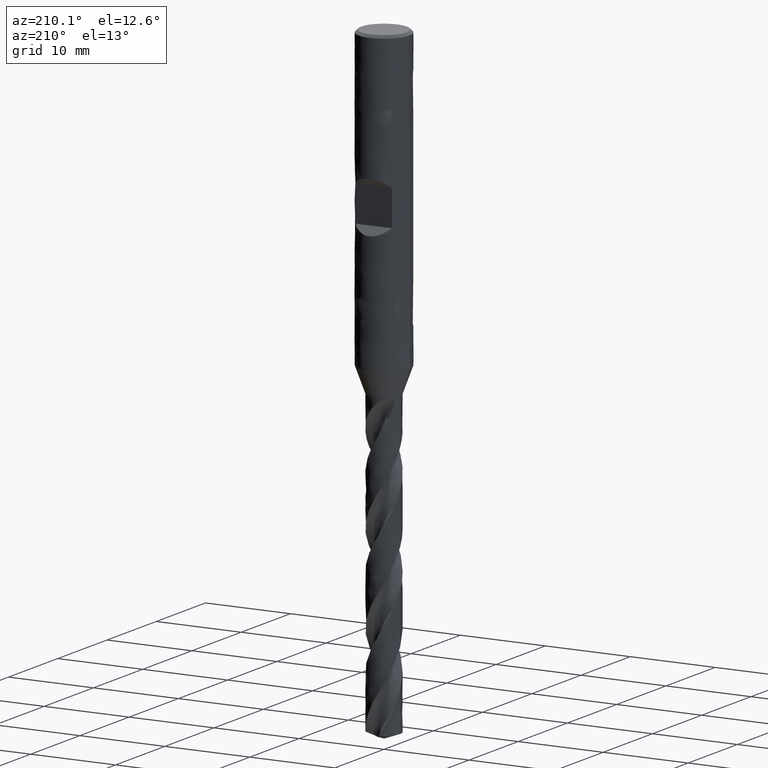
[diagram: clean part render]
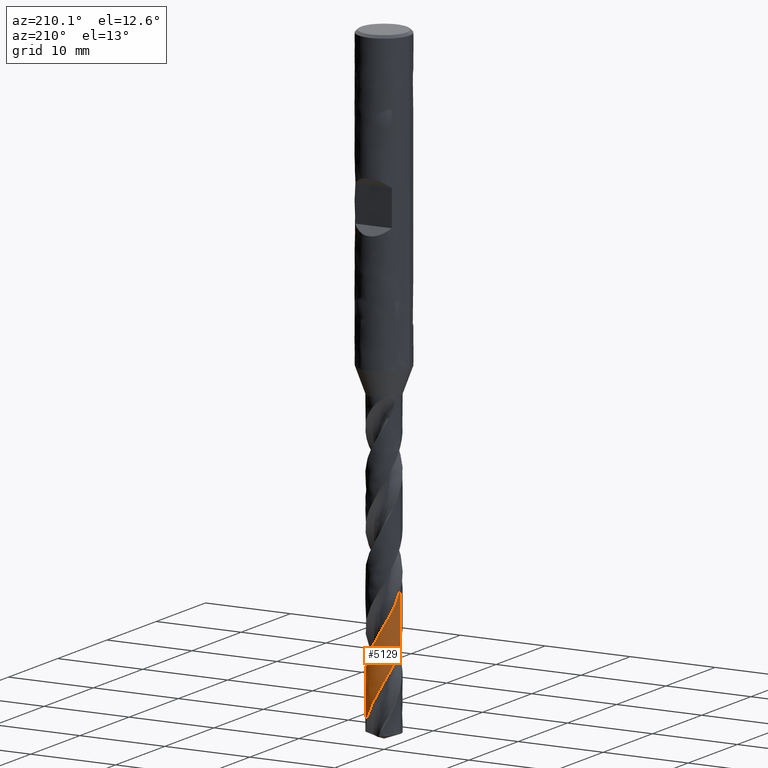
[diagram: same view with one face highlighted and labeled with its STEP entity id]
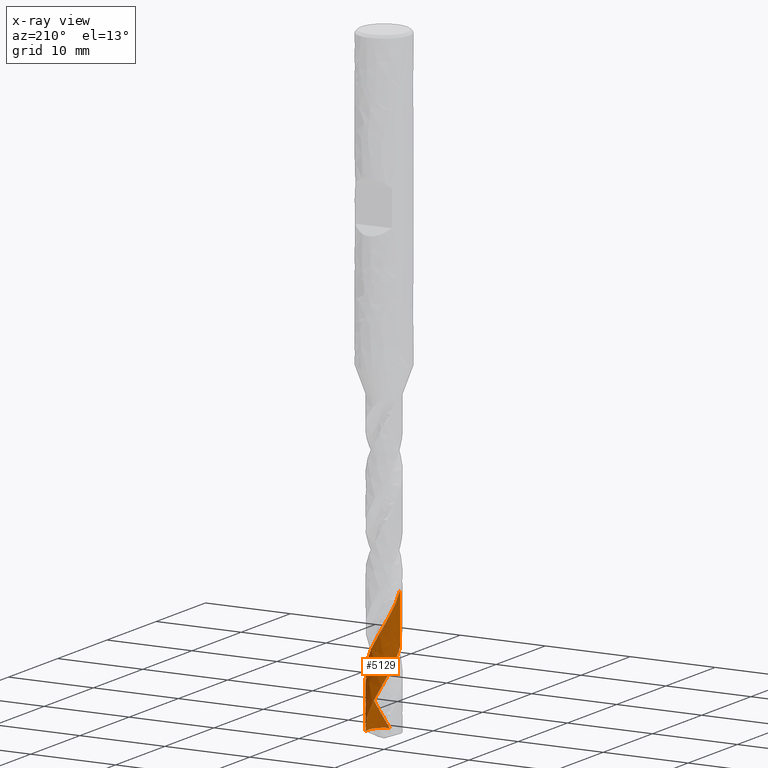
[diagram: x-ray of the same camera — body ghosted, the highlighted face saturated]
A machine part, auxiliary view. The second image highlights one B-rep face of the part: STEP entity #5129.
The next image is the same camera in x-ray: the body ghosted, the highlighted face saturated — about 0% of this face is hidden behind the body in this view.
In plain terms, the highlighted face is a freeform B-spline surface patch.
Its self-contained STEP definition (entity closure, byte-faithful):
#3325 = VERTEX_POINT('', #3326);
#3326 = CARTESIAN_POINT('', (-1.9, 4.04998519873993E-15, -64.2412776575203));
#3513 = EDGE_CURVE('', #3514, #3325, #3516, .T.);
#3514 = VERTEX_POINT('', #3515);
#3515 = CARTESIAN_POINT('', (1.73084838171589, 0.783686084801496, -73.3084565548942));
#3516 = B_SPLINE_CURVE_WITH_KNOTS('', 3, (#3517, #3518, #3519, #3520, #3521, #3522, #3523, #3524, #3525, #3526, #3527, #3528, #3529, #3530, #3531, #3532, #3533, #3534, #3535, #3536, #3537, #3538, #3539, #3540, #3541, #3542, #3543, #3544, #3545, #3546, #3547, #3548, #3549, #3550, #3551, #3552, #3553, #3554, #3555, #3556, #3557, #3558, #3559, #3560, #3561, #3562, #3563, #3564, #3565, #3566, #3567, #3568, #3569, #3570, #3571, #3572, #3573, #3574, #3575, #3576, #3577, #3578, #3579, #3580, #3581, #3582, #3583, #3584, #3585, #3586, #3587, #3588, #3589, #3590, #3591, #3592, #3593, #3594, #3595), .UNSPECIFIED., .F., .U., (4, 3, 3, 3, 3, 3, 3, 3, 3, 3, 3, 3, 3, 3, 3, 3, 3, 3, 3, 3, 3, 3, 3, 3, 3, 3, 4), (0., 0.443819757617372, 0.88745372120638, 1.33090561153691, 1.77417789256857, 2.21727183258299, 2.66018751453658, 3.10292384433296, 3.54547852050461, 3.98784797018588, 4.28291016538362, 4.37043992165208, 4.42881222714875, 4.87336559562788, 5.31770501137488, 5.76184031133185, 6.20577938786488, 6.64952844220095, 7.09309217258721, 7.5364739102227, 7.97967571194177, 8.42269841561081, 8.86554166123114, 9.30820381940032, 9.75068200303021, 10.1929720216985, 10.4318624018221), .UNSPECIFIED.);
#3517 = CARTESIAN_POINT('', (1.73084838171589, 0.783686084801486, -73.3084565548942));
#3518 = CARTESIAN_POINT('', (1.70070003341415, 0.85027169973263, -73.1798344235422));
#3519 = CARTESIAN_POINT('', (1.66668916370934, 0.915145304474307, -73.0511623395597));
#3520 = CARTESIAN_POINT('', (1.62906844058166, 0.977822077834633, -72.9225445998536));
#3521 = CARTESIAN_POINT('', (1.59146346642771, 1.04047261313321, -72.7939807027437));
#3522 = CARTESIAN_POINT('', (1.55022102264428, 1.10097917989783, -72.6653670155968));
#3523 = CARTESIAN_POINT('', (1.50564777995486, 1.15888945232797, -72.5368075909029));
#3524 = CARTESIAN_POINT('', (1.461092830715, 1.21677595761477, -72.4083009287008));
#3525 = CARTESIAN_POINT('', (1.41317361545346, 1.27211535473051, -72.27974442353));
#3526 = CARTESIAN_POINT('', (1.36224628553535, 1.32449426482154, -72.1512422442819));
#3527 = CARTESIAN_POINT('', (1.31133958248165, 1.37685196012126, -72.0227921116861));
#3528 = CARTESIAN_POINT('', (1.25738614180971, 1.42629382025662, -71.8942920515753));
#3529 = CARTESIAN_POINT('', (1.2007866494811, 1.47245082173497, -71.7658463980114));
#3530 = CARTESIAN_POINT('', (1.14420992873435, 1.51858925294184, -71.6374524217788));
#3531 = CARTESIAN_POINT('', (1.08494399395755, 1.56148242273656, -71.5090084424359));
#3532 = CARTESIAN_POINT('', (1.02342863498809, 1.60081036637274, -71.3806189305678));
#3533 = CARTESIAN_POINT('', (0.961938023837575, 1.6401224882557, -71.2522810701971));
#3534 = CARTESIAN_POINT('', (0.898150867164237, 1.67590354671434, -71.1238931628227));
#3535 = CARTESIAN_POINT('', (0.832540203564457, 1.70788665005875, -70.9955597435056));
#3536 = CARTESIAN_POINT('', (0.766956108032894, 1.7398568023183, -70.8672782909094));
#3537 = CARTESIAN_POINT('', (0.699497954730948, 1.76805743884723, -70.738946804601));
#3538 = CARTESIAN_POINT('', (0.630665853888616, 1.79227804225211, -70.6106697623575));
#3539 = CARTESIAN_POINT('', (0.561861994687581, 1.81648870800313, -70.4824453518683));
#3540 = CARTESIAN_POINT('', (0.491630675749331, 1.83674182398059, -70.3541709958905));
#3541 = CARTESIAN_POINT('', (0.420492640790754, 1.85288584080112, -70.2259509603052));
#3542 = CARTESIAN_POINT('', (0.349384379890068, 1.86902310071738, -70.0977845898339));
#3543 = CARTESIAN_POINT('', (0.277313356633181, 1.88106757191773, -69.9695684477192));
#3544 = CARTESIAN_POINT('', (0.204814303071141, 1.88892855906696, -69.8414064152785));
#3545 = CARTESIAN_POINT('', (0.156457143893022, 1.89417186898889, -69.7559218261862));
#3546 = CARTESIAN_POINT('', (0.107888156799473, 1.89755800988243, -69.6704227614652));
#3547 = CARTESIAN_POINT('', (0.0592676590862896, 1.8990753920228, -69.5849402084585));
#3548 = CARTESIAN_POINT('', (0.0448444615918283, 1.89952552115176, -69.5595819377221));
#3549 = CARTESIAN_POINT('', (0.0304157549806455, 1.8998113382898, -69.5342233509184));
#3550 = CARTESIAN_POINT('', (0.0159857686795061, 1.89993275017821, -69.5088652379871));
#3551 = CARTESIAN_POINT('', (0.00636262331052596, 1.90001371797869, -69.4919542858955));
#3552 = CARTESIAN_POINT('', (-0.0032612577529606, 1.90002157300981, -69.4750432443375));
#3553 = CARTESIAN_POINT('', (-0.0128846379152893, 1.89995631163082, -69.4581323579495));
#3554 = CARTESIAN_POINT('', (-0.0861746344456276, 1.89945929227184, -69.3293419762136));
#3555 = CARTESIAN_POINT('', (-0.159469874461256, 1.89471427260633, -69.2005012826463));
#3556 = CARTESIAN_POINT('', (-0.232219834932977, 1.885755537779, -69.0717153464227));
#3557 = CARTESIAN_POINT('', (-0.304934782616787, 1.87680111457303, -68.9429913917402));
#3558 = CARTESIAN_POINT('', (-0.377164679202487, 1.86362968447069, -68.8142171627675));
#3559 = CARTESIAN_POINT('', (-0.448367341842851, 1.84633873565197, -68.6854976780631));
#3560 = CARTESIAN_POINT('', (-0.519537296181359, 1.82905572976055, -68.5568373231103));
#3561 = CARTESIAN_POINT('', (-0.589739150619504, 1.80764287165939, -68.4281266599308));
#3562 = CARTESIAN_POINT('', (-0.658446446102016, 1.78225931828555, -68.2994707840628));
#3563 = CARTESIAN_POINT('', (-0.727123386013218, 1.75688697961982, -68.1708717496494));
#3564 = CARTESIAN_POINT('', (-0.794362873305756, 1.72752686062634, -68.042222342467));
#3565 = CARTESIAN_POINT('', (-0.859661184478092, 1.69439742914753, -67.9136277833872));
#3566 = CARTESIAN_POINT('', (-0.924931545579792, 1.66128217827971, -67.7850882674922));
#3567 = CARTESIAN_POINT('', (-0.988315048638229, 1.62437414143174, -67.6564983177346));
#3568 = CARTESIAN_POINT('', (-1.04933728706745, 1.58394799724295, -67.5279632629518));
#3569 = CARTESIAN_POINT('', (-1.11033404063728, 1.54353873631879, -67.399481888563));
#3570 = CARTESIAN_POINT('', (-1.16902044200627, 1.49958189474562, -67.2709500502194));
#3571 = CARTESIAN_POINT('', (-1.22495750687567, 1.4524045945772, -67.1424731145384));
#3572 = CARTESIAN_POINT('', (-1.28087162094993, 1.40524665110105, -67.0140488925248));
#3573 = CARTESIAN_POINT('', (-1.33408339481459, 1.35483315881667, -66.8855742287959));
#3574 = CARTESIAN_POINT('', (-1.38419485934803, 1.30153931610017, -66.7571544170991));
#3575 = CARTESIAN_POINT('', (-1.4342859873373, 1.24826710142021, -66.6287867215239));
#3576 = CARTESIAN_POINT('', (-1.48131944439281, 1.19207419131738, -66.5003686741646));
#3577 = CARTESIAN_POINT('', (-1.52494332585848, 1.13337895380129, -66.3720053566388));
#3578 = CARTESIAN_POINT('', (-1.56854957889376, 1.07470743505742, -66.243693910788));
#3579 = CARTESIAN_POINT('', (-1.60878412599925, 1.01348833429434, -66.1153322778567));
#3580 = CARTESIAN_POINT('', (-1.64534561030775, 0.950177784754532, -65.9870251785445));
#3581 = CARTESIAN_POINT('', (-1.68189228442125, 0.88689288082518, -65.858770053412));
#3582 = CARTESIAN_POINT('', (-1.71479854936418, 0.821466794465895, -65.7304649318818));
#3583 = CARTESIAN_POINT('', (-1.74381758265316, 0.754387326530423, -65.6022141764638));
#3584 = CARTESIAN_POINT('', (-1.77282474947963, 0.687335288729639, -65.474015865342));
#3585 = CARTESIAN_POINT('', (-1.79797154855918, 0.61857645519595, -65.3457676672414));
#3586 = CARTESIAN_POINT('', (-1.81906906142597, 0.548623504566676, -65.2175737589458));
#3587 = CARTESIAN_POINT('', (-1.8401578059688, 0.478699627038922, -65.0894331292393));
#3588 = CARTESIAN_POINT('', (-1.85721785547225, 0.407525525884911, -64.9612426331181));
#3589 = CARTESIAN_POINT('', (-1.8701206954161, 0.335631620347473, -64.8331064249471));
#3590 = CARTESIAN_POINT('', (-1.88301804839478, 0.263768287874378, -64.7050247070212));
#3591 = CARTESIAN_POINT('', (-1.89177222871474, 0.191127311466483, -64.5768930921876));
#3592 = CARTESIAN_POINT('', (-1.89631670204795, 0.118249589995069, -64.4488158022018));
#3593 = CARTESIAN_POINT('', (-1.89877127012818, 0.0788867605166333, -64.3796384950086));
#3594 = CARTESIAN_POINT('', (-1.9, 0.0394415203860729, -64.3104536905748));
#3595 = CARTESIAN_POINT('', (-1.9, 4.03844428549809E-15, -64.2412776575203));
#3822 = VERTEX_POINT('', #3823);
#3823 = CARTESIAN_POINT('', (-1.9, 3.68704157555169E-15, -58.3139584755173));
#3944 = EDGE_CURVE('', #3822, #3325, #3945, .T.);
#3945 = LINE('', #3946, #3947);
#3946 = CARTESIAN_POINT('', (-1.9, 3.68704157555169E-15, -58.3139584755173));
#3947 = VECTOR('', #3948, 5.92731918200309);
#3948 = DIRECTION('', (0., 3.62943623188239E-16, -5.92731918200309));
#3976 = VERTEX_POINT('', #3977);
#3977 = CARTESIAN_POINT('', (0.422849418221703, -1.85234941884882, -73.3084565548942));
#4077 = EDGE_CURVE('', #4078, #3976, #4080, .T.);
#4078 = VERTEX_POINT('', #4079);
#4079 = CARTESIAN_POINT('', (0.706166154767308, -1.76389607456367, -72.7835814676865));
#4080 = B_SPLINE_CURVE_WITH_KNOTS('', 3, (#4081, #4082, #4083, #4084, #4085, #4086, #4087), .UNSPECIFIED., .F., .U., (4, 3, 4), (0., 0.442631279409449, 0.603068373944691), .UNSPECIFIED.);
#4081 = CARTESIAN_POINT('', (0.706166154767306, -1.76389607456367, -72.7835814676865));
#4082 = CARTESIAN_POINT('', (0.638687710506975, -1.79091070099215, -72.9119794060499));
#4083 = CARTESIAN_POINT('', (0.569632998411579, -1.81405637742271, -73.0404305375617));
#4084 = CARTESIAN_POINT('', (0.499510250112355, -1.83316379792769, -73.1688317358017));
#4085 = CARTESIAN_POINT('', (0.47409340651973, -1.84008951504821, -73.2153723128887));
#4086 = CARTESIAN_POINT('', (0.448531594954052, -1.84648675957976, -73.2619155854585));
#4087 = CARTESIAN_POINT('', (0.422849418221703, -1.85234941884882, -73.3084565548942));
#4656 = EDGE_CURVE('', #3514, #3976, #4657, .T.);
#4657 = CIRCLE('', #4658, 1.89999999999997);
#4658 = AXIS2_PLACEMENT_3D('', #4659, #4660, #4661);
#4659 = CARTESIAN_POINT('', (2.74862687175111E-31, 4.4888483335192E-15, -73.3084565548942));
#4660 = DIRECTION('', (3.74939945665464E-33, 6.12323399573677E-17, -1.));
#4661 = DIRECTION('', (-1., 6.12323399573677E-17, 0.));
#5129 = ADVANCED_FACE('', (#5130), #5266, .T.);
#5130 = FACE_OUTER_BOUND('', #5131, .T.);
#5131 = EDGE_LOOP('', (#5132, #5133, #5134, #5135, #5136));
#5132 = ORIENTED_EDGE('', *, *, #4077, .T.);
#5133 = ORIENTED_EDGE('', *, *, #4656, .F.);
#5134 = ORIENTED_EDGE('', *, *, #3513, .T.);
#5135 = ORIENTED_EDGE('', *, *, #3944, .F.);
#5136 = ORIENTED_EDGE('', *, *, #5137, .F.);
#5137 = EDGE_CURVE('', #4078, #3822, #5138, .T.);
#5138 = B_SPLINE_CURVE_WITH_KNOTS('', 3, (#5139, #5140, #5141, #5142, #5143, #5144, #5145, #5146, #5147, #5148, #5149, #5150, #5151, #5152, #5153, #5154, #5155, #5156, #5157, #5158, #5159, #5160, #5161, #5162, #5163, #5164, #5165, #5166, #5167, #5168, #5169, #5170, #5171, #5172, #5173, #5174, #5175, #5176, #5177, #5178, #5179, #5180, #5181, #5182, #5183, #5184, #5185, #5186, #5187, #5188, #5189, #5190, #5191, #5192, #5193, #5194, #5195, #5196, #5197, #5198, #5199, #5200, #5201, #5202, #5203, #5204, #5205, #5206, #5207, #5208, #5209, #5210, #5211, #5212, #5213, #5214, #5215, #5216, #5217, #5218, #5219, #5220, #5221, #5222, #5223, #5224, #5225, #5226, #5227, #5228, #5229, #5230, #5231, #5232, #5233, #5234, #5235, #5236, #5237, #5238, #5239, #5240, #5241, #5242, #5243, #5244, #5245, #5246, #5247, #5248, #5249, #5250, #5251, #5252, #5253, #5254, #5255, #5256, #5257, #5258, #5259, #5260, #5261, #5262, #5263, #5264, #5265), .UNSPECIFIED., .F., .U., (4, 3, 3, 3, 3, 3, 3, 3, 3, 3, 3, 3, 3, 3, 3, 3, 3, 3, 3, 3, 3, 3, 3, 3, 3, 3, 3, 3, 3, 3, 3, 3, 3, 3, 3, 3, 3, 3, 3, 3, 3, 3, 4), (0., 0.44388883261312, 0.88759215259219, 1.33111414596845, 1.77445768546623, 2.21762442363559, 2.66061474736746, 3.10342785999716, 3.54606180040333, 3.98851339273206, 4.43077816096444, 4.56203735797933, 4.60095491193245, 5.04550647775911, 5.48984578433054, 5.9339824862187, 6.3779243191278, 6.82167734925043, 7.26524615833888, 7.70863397730673, 8.15184277717759, 8.59487332320761, 9.03772519605882, 9.48039676335356, 9.92288509182405, 10.3651859482152, 10.5619980022049, 10.6203616343877, 10.6787672092637, 11.1233074884874, 11.5676342466853, 12.011757100844, 12.4556837405333, 12.8994201750872, 13.3429709166299, 13.786339111612, 14.2295266295422, 14.6725341147222, 15.1153609983761, 15.5580054420263, 16.0004643491153, 16.4427332943112, 16.6442499527873), .UNSPECIFIED.);
#5139 = CARTESIAN_POINT('', (0.706166154767308, -1.76389607456367, -72.7835814676865));
#5140 = CARTESIAN_POINT('', (0.773836311041015, -1.73680469727824, -72.6548187398329));
#5141 = CARTESIAN_POINT('', (0.839978021291823, -1.70579957334485, -72.5260079724413));
#5142 = CARTESIAN_POINT('', (0.904100923213498, -1.67110787223462, -72.3972532747374));
#5143 = CARTESIAN_POINT('', (0.968197026514518, -1.63643066968435, -72.2685523869546));
#5144 = CARTESIAN_POINT('', (1.03032604116709, -1.59804290392088, -72.1398034249543));
#5145 = CARTESIAN_POINT('', (1.09002735771825, -1.55622632011728, -72.0111105212175));
#5146 = CARTESIAN_POINT('', (1.14970427635208, -1.51442682534308, -71.882470209936));
#5147 = CARTESIAN_POINT('', (1.20700209867691, -1.46916864326915, -71.7537818998883));
#5148 = CARTESIAN_POINT('', (1.26149565273594, -1.42078454317617, -71.6251495031454));
#5149 = CARTESIAN_POINT('', (1.31596728096892, -1.37241991073181, -71.4965688624607));
#5150 = CARTESIAN_POINT('', (1.36767984911133, -1.32089369098611, -71.3679404473694));
#5151 = CARTESIAN_POINT('', (1.41624885362555, -1.26658564045401, -71.2393676486886));
#5152 = CARTESIAN_POINT('', (1.46479848926722, -1.21229924747328, -71.1108461236581));
#5153 = CARTESIAN_POINT('', (1.51024597313387, -1.15518968289424, -70.9822771153523));
#5154 = CARTESIAN_POINT('', (1.55225256785713, -1.09567876933932, -70.853763461807));
#5155 = CARTESIAN_POINT('', (1.59424244072574, -1.03619154570388, -70.7253009665773));
#5156 = CARTESIAN_POINT('', (1.63282819345344, -0.974256642468421, -70.5967911440418));
#5157 = CARTESIAN_POINT('', (1.66772168911543, -0.910332009573419, -70.4683365717225));
#5158 = CARTESIAN_POINT('', (1.70260122619978, -0.84643294869217, -70.3399333855738));
#5159 = CARTESIAN_POINT('', (1.73381978340755, -0.780493864654562, -70.2114828692338));
#5160 = CARTESIAN_POINT('', (1.76114385990772, -0.713002317464289, -70.0830876348864));
#5161 = CARTESIAN_POINT('', (1.78845688046712, -0.645538078883978, -69.9547443521613));
#5162 = CARTESIAN_POINT('', (1.81190063939024, -0.576468161182986, -69.8263536377546));
#5163 = CARTESIAN_POINT('', (1.83129935534214, -0.506302944020568, -69.6980183155712));
#5164 = CARTESIAN_POINT('', (1.85069007977275, -0.436166632216019, -69.569735862581));
#5165 = CARTESIAN_POINT('', (1.86605462353558, -0.364879821917652, -69.44140583159));
#5166 = CARTESIAN_POINT('', (1.87727709634176, -0.29296877572871, -69.3131313301768));
#5167 = CARTESIAN_POINT('', (1.88849483048641, -0.221088093802108, -69.1849109923562));
#5168 = CARTESIAN_POINT('', (1.89558289030714, -0.148526794811242, -69.056642932538));
#5169 = CARTESIAN_POINT('', (1.89848658690313, -0.0758200458249127, -68.9284305219752));
#5170 = CARTESIAN_POINT('', (1.89934837131587, -0.0542415024386707, -68.8903785240169));
#5171 = CARTESIAN_POINT('', (1.89984225961209, -0.0326468430793321, -68.8523255518093));
#5172 = CARTESIAN_POINT('', (1.89996786592455, -0.0110502694137879, -68.8142742314035));
#5173 = CARTESIAN_POINT('', (1.90000510743259, -0.0046470166136343, -68.8029922462279));
#5174 = CARTESIAN_POINT('', (1.90000997864289, 0.00175648953902245, -68.7917102515508));
#5175 = CARTESIAN_POINT('', (1.8999824778974, 0.0081598825277905, -68.7804283179933));
#5176 = CARTESIAN_POINT('', (1.89966833946297, 0.0813052395866858, -68.6515558499402));
#5177 = CARTESIAN_POINT('', (1.89512310946969, 0.154469338048805, -68.522635215938));
#5178 = CARTESIAN_POINT('', (1.88637838793384, 0.227104772157291, -68.3937706415917));
#5179 = CARTESIAN_POINT('', (1.87763784172482, 0.299705525152645, -68.2649675959873));
#5180 = CARTESIAN_POINT('', (1.86469463785258, 0.371837625298226, -68.1361165072607));
#5181 = CARTESIAN_POINT('', (1.84764319888934, 0.442961182947412, -68.0073214024737));
#5182 = CARTESIAN_POINT('', (1.83059953484347, 0.514052310501719, -67.8785850241847));
#5183 = CARTESIAN_POINT('', (1.80943742919384, 0.584194039209882, -67.749800577228));
#5184 = CARTESIAN_POINT('', (1.78431268091478, 0.652861590788425, -67.6210721639691));
#5185 = CARTESIAN_POINT('', (1.75919895634538, 0.721499013860108, -67.4924002314613));
#5186 = CARTESIAN_POINT('', (1.7301056537016, 0.788719387861701, -67.3636801183331));
#5187 = CARTESIAN_POINT('', (1.69724762549178, 0.854020197514417, -67.2350161549874));
#5188 = CARTESIAN_POINT('', (1.66440357138132, 0.919293235567551, -67.1064069107805));
#5189 = CARTESIAN_POINT('', (1.62777155203283, 0.982700932186704, -66.9777493418618));
#5190 = CARTESIAN_POINT('', (1.58762238832244, 1.04376968345386, -66.8491480535533));
#5191 = CARTESIAN_POINT('', (1.54748989226265, 1.10481308244677, -66.7206001531898));
#5192 = CARTESIAN_POINT('', (1.5038111647381, 1.16356818998858, -66.5920037988222));
#5193 = CARTESIAN_POINT('', (1.45690925290133, 1.21959642046478, -66.4634638262681));
#5194 = CARTESIAN_POINT('', (1.41002647852983, 1.2756017896487, -66.3349763020932));
#5195 = CARTESIAN_POINT('', (1.35988601281231, 1.32892688093088, -66.2064402493475));
#5196 = CARTESIAN_POINT('', (1.30685882369609, 1.37917367105368, -66.0779606125346));
#5197 = CARTESIAN_POINT('', (1.25385304445878, 1.4294001738916, -65.9495328497416));
#5198 = CARTESIAN_POINT('', (1.19792097302854, 1.47659055580596, -65.8210565717339));
#5199 = CARTESIAN_POINT('', (1.13947670948207, 1.52039232718003, -65.69263664587));
#5200 = CARTESIAN_POINT('', (1.08105595159356, 1.56417648194996, -65.5642683691273));
#5201 = CARTESIAN_POINT('', (1.0200786413918, 1.60460948507039, -65.4358517051764));
#5202 = CARTESIAN_POINT('', (0.956996805887744, 1.64138877586045, -65.3074912072282));
#5203 = CARTESIAN_POINT('', (0.893940411139808, 1.67815323364891, -65.1791824767675));
#5204 = CARTESIAN_POINT('', (0.828730566522939, 1.71129640020872, -65.0508255958467));
#5205 = CARTESIAN_POINT('', (0.761851528005383, 1.74056951865645, -64.9225246085908));
#5206 = CARTESIAN_POINT('', (0.694999719049212, 1.76983071865868, -64.7942758586231));
#5207 = CARTESIAN_POINT('', (0.62642568953642, 1.79524879518303, -64.6659791924155));
#5208 = CARTESIAN_POINT('', (0.556639370033966, 1.81663221696867, -64.5377382358626));
#5209 = CARTESIAN_POINT('', (0.486881937779031, 1.83800678733183, -64.4095503631845));
#5210 = CARTESIAN_POINT('', (0.415856130758709, 1.85536752636752, -64.2813146563402));
#5211 = CARTESIAN_POINT('', (0.344090298937308, 1.86858284969607, -64.1531346152767));
#5212 = CARTESIAN_POINT('', (0.272354872640421, 1.88179257399752, -64.0250088811345));
#5213 = CARTESIAN_POINT('', (0.199821430575303, 1.89087119495635, -63.8968352809026));
#5214 = CARTESIAN_POINT('', (0.127029336828276, 1.89574880920047, -63.7687173980025));
#5215 = CARTESIAN_POINT('', (0.0946388015680476, 1.89791921711192, -63.7117083659782));
#5216 = CARTESIAN_POINT('', (0.06218852040028, 1.89925949502224, -63.6546956048856));
#5217 = CARTESIAN_POINT('', (0.0297264888713627, 1.89976744257275, -63.5976881871613));
#5218 = CARTESIAN_POINT('', (0.0201000354623698, 1.89991807188333, -63.5807829219994));
#5219 = CARTESIAN_POINT('', (0.0104722555514253, 1.89999553349315, -63.5638776018669));
#5220 = CARTESIAN_POINT('', (0.000844409898277662, 1.89999981236103, -63.5469724590285));
#5221 = CARTESIAN_POINT('', (-0.00879035475152427, 1.90000409430389, -63.530055167405));
#5222 = CARTESIAN_POINT('', (-0.0184253204458272, 1.89993508848181, -63.513137812985));
#5223 = CARTESIAN_POINT('', (-0.0280592517076305, 1.8997927988056, -63.4962206446003));
#5224 = CARTESIAN_POINT('', (-0.101385650809779, 1.89870979444296, -63.3674596012687));
#5225 = CARTESIAN_POINT('', (-0.17468655423625, 1.8933738596349, -63.2386499192177));
#5226 = CARTESIAN_POINT('', (-0.247410284019503, 1.88382274945438, -63.1098967623464));
#5227 = CARTESIAN_POINT('', (-0.320099083232674, 1.87427622685104, -62.9812054480289));
#5228 = CARTESIAN_POINT('', (-0.39227132714681, 1.86051069330366, -62.8524654928817));
#5229 = CARTESIAN_POINT('', (-0.463384033392037, 1.84262726496639, -62.7237820906613));
#5230 = CARTESIAN_POINT('', (-0.534464105617855, 1.82475204343461, -62.5951577419753));
#5231 = CARTESIAN_POINT('', (-0.604544017329615, 1.80274803244604, -62.466484665832));
#5232 = CARTESIAN_POINT('', (-0.673096928100635, 1.77677813060089, -62.337868236437));
#5233 = CARTESIAN_POINT('', (-0.741619552042498, 1.75081970231639, -62.209308630068));
#5234 = CARTESIAN_POINT('', (-0.808672357052725, 1.72087775360376, -62.080700175152));
#5235 = CARTESIAN_POINT('', (-0.873751682972749, 1.68717456017519, -61.9521484794372));
#5236 = CARTESIAN_POINT('', (-0.938803124956812, 1.65348580724172, -61.8236518630767));
#5237 = CARTESIAN_POINT('', (-1.00193532807574, 1.61601183405493, -61.6951062855038));
#5238 = CARTESIAN_POINT('', (-1.06267438883828, 1.5750311562973, -61.5666175578164));
#5239 = CARTESIAN_POINT('', (-1.12338803176668, 1.53406762796637, -61.4381825995671));
#5240 = CARTESIAN_POINT('', (-1.18175925481067, 1.48956746695052, -61.3096986119347));
#5241 = CARTESIAN_POINT('', (-1.2373499879571, 1.44186164638033, -61.1812715094079));
#5242 = CARTESIAN_POINT('', (-1.29291784232961, 1.39417545949046, -61.0528972619971));
#5243 = CARTESIAN_POINT('', (-1.34575195982547, 1.34324808865552, -60.9244739910952));
#5244 = CARTESIAN_POINT('', (-1.39545565526656, 1.28945861282345, -60.7961075577601));
#5245 = CARTESIAN_POINT('', (-1.4451390959459, 1.23569105675023, -60.667793435053));
#5246 = CARTESIAN_POINT('', (-1.49173451999296, 1.17902057196518, -60.5394303921578));
#5247 = CARTESIAN_POINT('', (-1.53489163449529, 1.11986948809064, -60.411124035362));
#5248 = CARTESIAN_POINT('', (-1.57803121760582, 1.06074243271844, -60.2828697994978));
#5249 = CARTESIAN_POINT('', (-1.61777018410015, 0.999088907691167, -60.1545668493827));
#5250 = CARTESIAN_POINT('', (-1.65380911347746, 0.935369133646675, -60.0263203395272));
#5251 = CARTESIAN_POINT('', (-1.68983335081035, 0.871675336338072, -59.8981261121189));
#5252 = CARTESIAN_POINT('', (-1.7221900635346, 0.805864766403862, -59.769883396466));
#5253 = CARTESIAN_POINT('', (-1.75063476918862, 0.738429349977358, -59.6416969355449));
#5254 = CARTESIAN_POINT('', (-1.77906775592406, 0.67102171623087, -59.5135632860932));
#5255 = CARTESIAN_POINT('', (-1.80361540146885, 0.601934969694492, -59.3853812478571));
#5256 = CARTESIAN_POINT('', (-1.82409161823853, 0.531685779640884, -59.2572554042991));
#5257 = CARTESIAN_POINT('', (-1.84455925230282, 0.461466034875349, -59.1291832653087));
#5258 = CARTESIAN_POINT('', (-1.86097574970394, 0.39002692301266, -59.0010627264067));
#5259 = CARTESIAN_POINT('', (-1.87321593619975, 0.317902589433471, -58.8729984155117));
#5260 = CARTESIAN_POINT('', (-1.88545086758833, 0.245809221159131, -58.7449890867598));
#5261 = CARTESIAN_POINT('', (-1.89352312198467, 0.172972077839675, -58.6169312821475));
#5262 = CARTESIAN_POINT('', (-1.89736999915072, 0.0999354107551163, -58.4889297886406));
#5263 = CARTESIAN_POINT('', (-1.89912280101594, 0.0666567796032296, -58.4306068303329));
#5264 = CARTESIAN_POINT('', (-1.9, 0.0333276288209321, -58.3722797943352));
#5265 = CARTESIAN_POINT('', (-1.9, 2.17783215145187E-15, -58.3139584755173));
#5266 = (
   BOUNDED_SURFACE ()
   B_SPLINE_SURFACE (2, 1, ((#5267, #5268), (#5269, #5270), (#5271, #5272), (#5273, #5274), (#5275, #5276), (#5277, #5278), (#5279, #5280)), .UNSPECIFIED., .F., .F., .U.)
   B_SPLINE_SURFACE_WITH_KNOTS ((3, 2, 2, 3), (2, 2), (0., 2.9845130209103, 5.96902604182061, 8.49911838218303), (0.57532841867316, 1.), .UNSPECIFIED.)
   GEOMETRIC_REPRESENTATION_ITEM ()
   RATIONAL_B_SPLINE_SURFACE (((1., 1.), (0.707106781186548, 0.707106781186548), (1., 1.), (0.707106781186548, 0.707106781186548), (1., 1.), (0.751702577850378, 0.751702577850378), (0.92438868065846, 0.92438868065846)))
   REPRESENTATION_ITEM ('')
   SURFACE ()
);
#5267 = CARTESIAN_POINT('', (-1.9, 3.68704157555169E-15, -58.3139584755173));
#5268 = CARTESIAN_POINT('', (-1.9, 4.6051897794382E-15, -73.3084565548942));
#5269 = CARTESIAN_POINT('', (-1.9, 1.9, -58.3139584755173));
#5270 = CARTESIAN_POINT('', (-1.9, 1.9, -73.3084565548942));
#5271 = CARTESIAN_POINT('', (2.2186712959341E-31, 1.9, -58.3139584755173));
#5272 = CARTESIAN_POINT('', (2.71170936169723E-31, 1.9, -73.3084565548942));
#5273 = CARTESIAN_POINT('', (1.9, 1.9, -58.3139584755173));
#5274 = CARTESIAN_POINT('', (1.9, 1.9, -73.3084565548942));
#5275 = CARTESIAN_POINT('', (1.9, 3.68704157555169E-15, -58.3139584755173));
#5276 = CARTESIAN_POINT('', (1.9, 4.6051897794382E-15, -73.3084565548942));
#5277 = CARTESIAN_POINT('', (1.9, -1.51514939720334, -58.3139584755173));
#5278 = CARTESIAN_POINT('', (1.9, -1.51514939720334, -73.3084565548942));
#5279 = CARTESIAN_POINT('', (0.422849418221703, -1.85234941884882, -58.3139584755173));
#5280 = CARTESIAN_POINT('', (0.422849418221703, -1.85234941884882, -73.3084565548942));